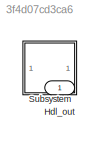
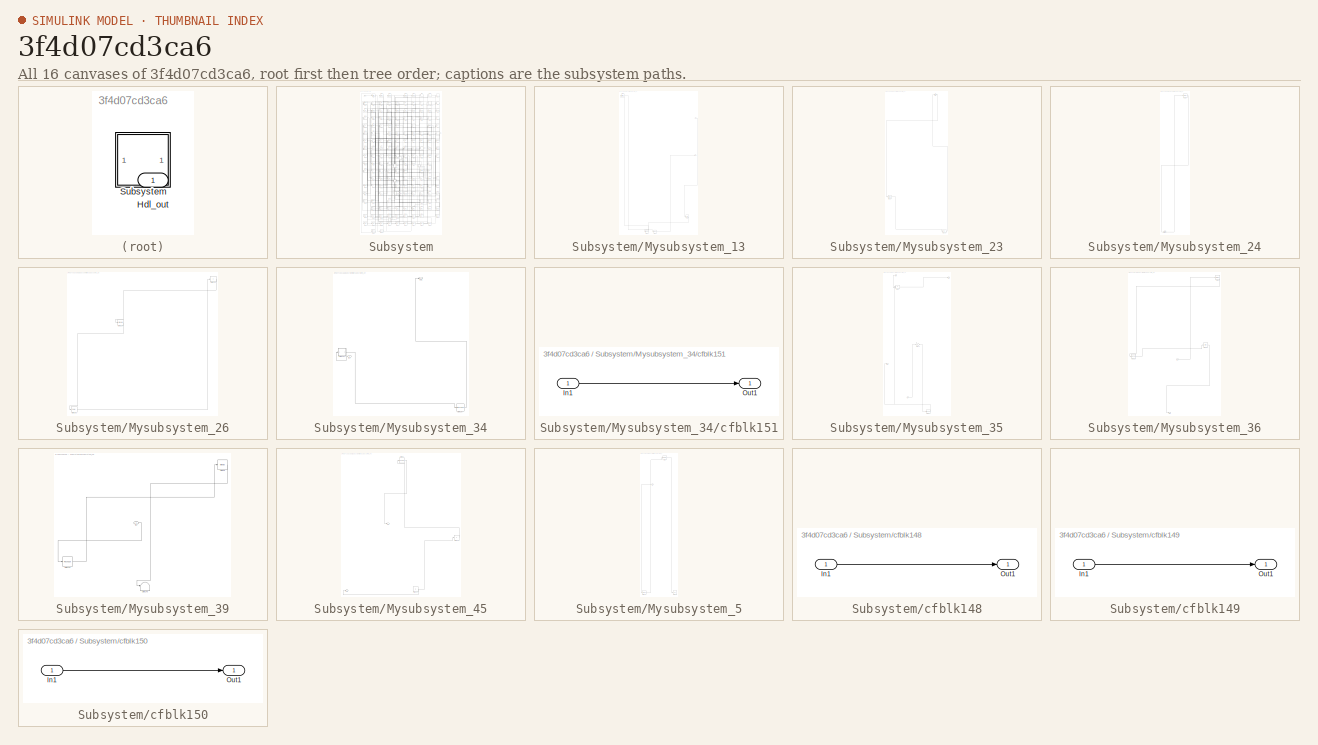
[diagram: thumbnail index - all 16 canvases of the model, root first then tree order]
MODEL slx_3f4d07cd3ca6
KIND model
CONFIG AbsTol = auto
CONFIG EnableMultiTasking = off
CONFIG FixedStep = auto
CONFIG MaxStep = auto
CONFIG MinStep = auto
CONFIG RelTol = 1e-3
CONFIG SampleTimeConstraint = Unconstrained
CONFIG SolverName = VariableStepAuto
CONFIG StartTime = 0.0
CONFIG StopTime = 10.0
BLOCK [Outport] Hdl_out
  OutDataTypeStr = uint8
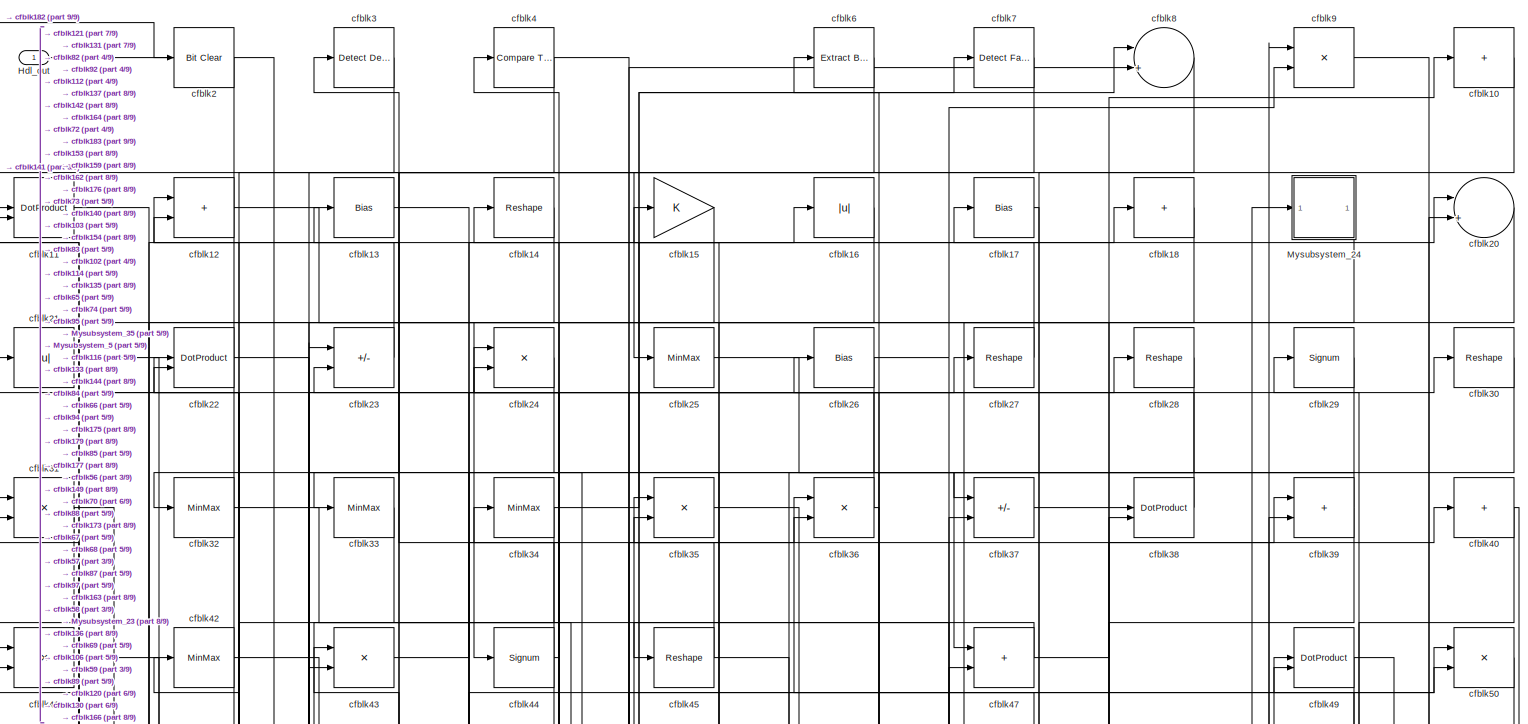
[diagram: Subsystem - part 1/9, full width, top band]
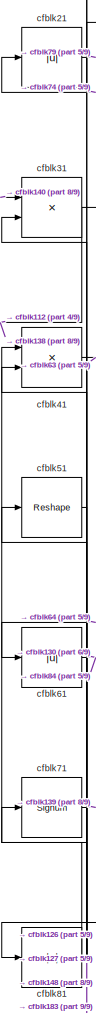
[diagram: Subsystem - part 2/9, top left region]
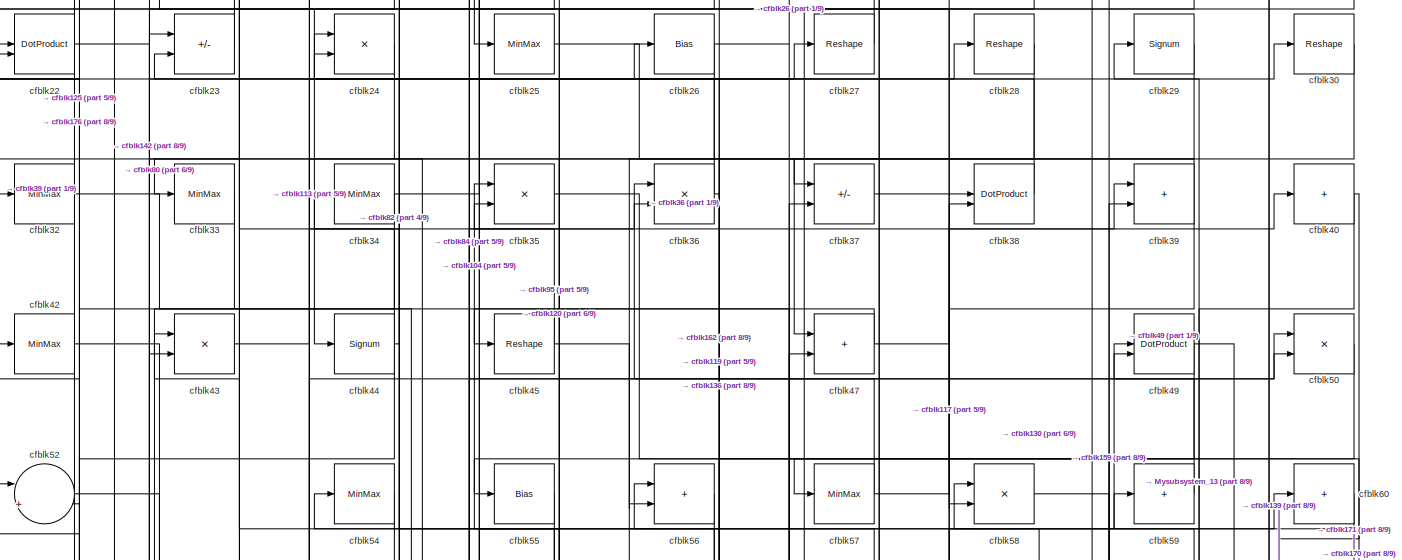
[diagram: Subsystem - part 3/9, full width, top band]
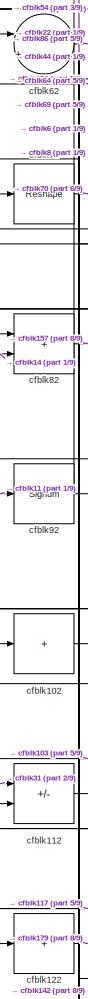
[diagram: Subsystem - part 4/9, middle left region]
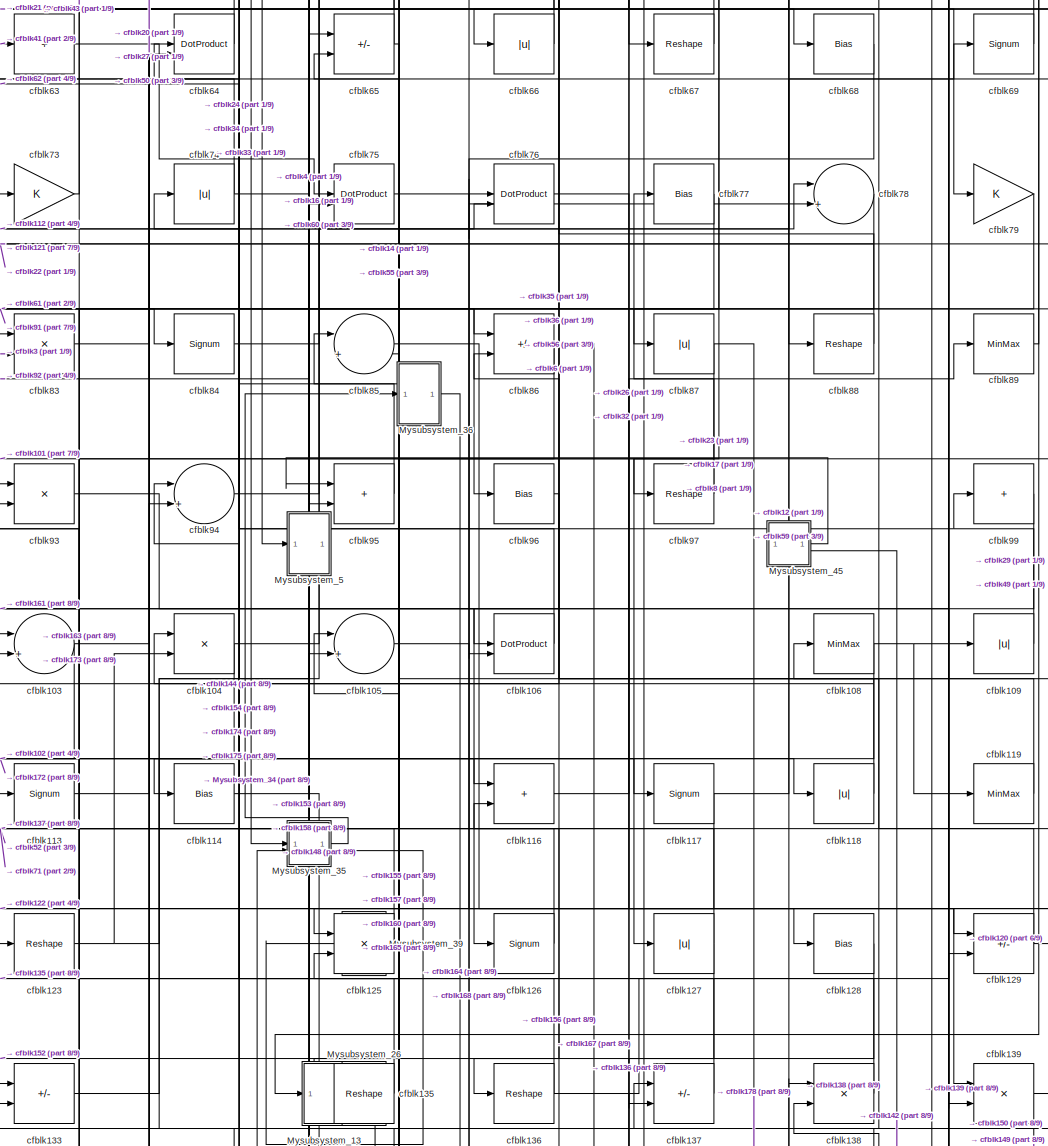
[diagram: Subsystem - part 5/9, central region]
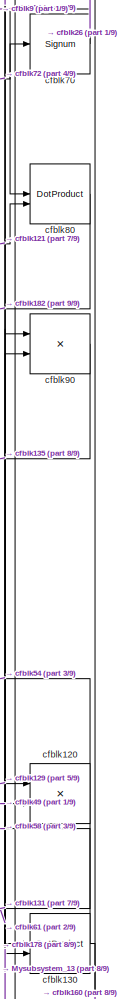
[diagram: Subsystem - part 6/9, middle right region]
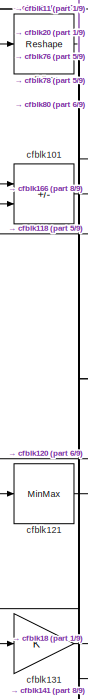
[diagram: Subsystem - part 7/9, middle left region]
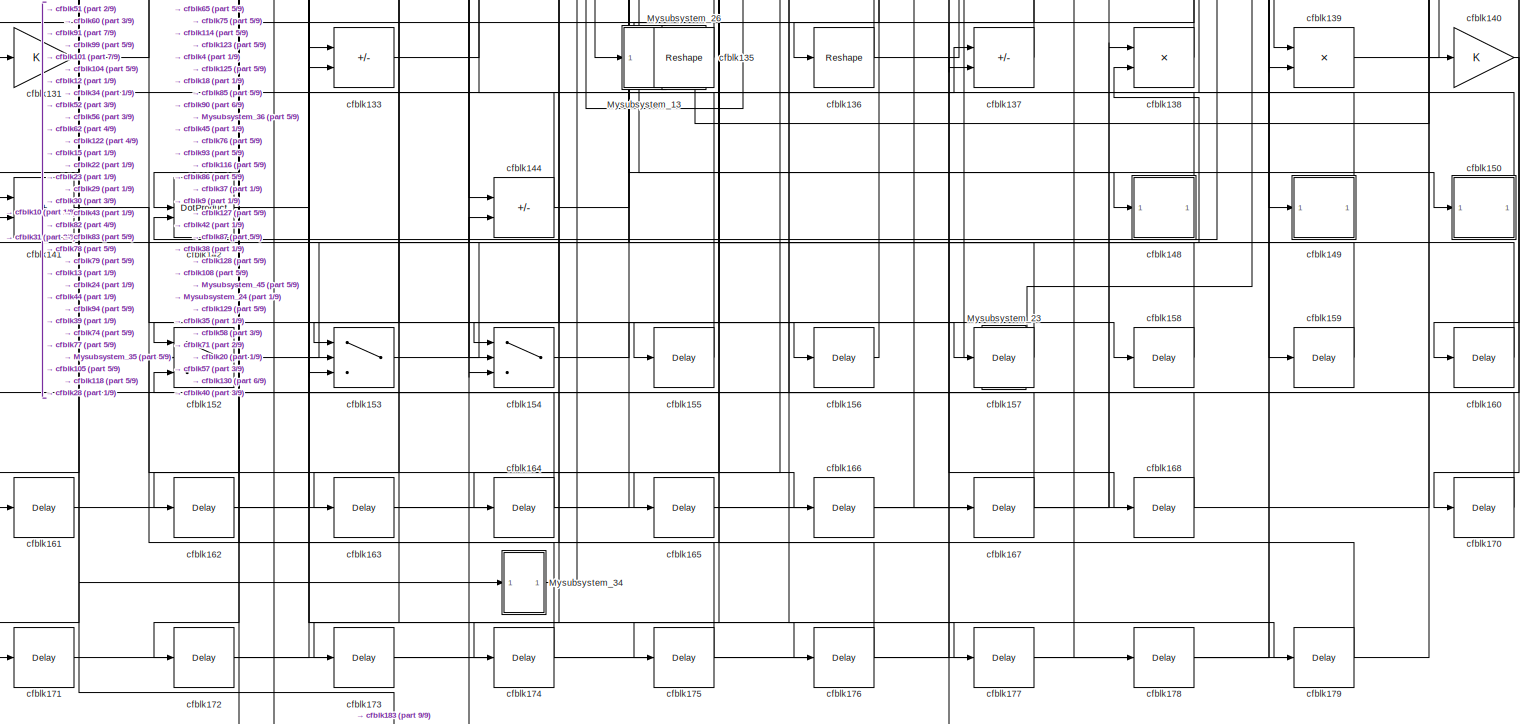
[diagram: Subsystem - part 8/9, full width, bottom band]
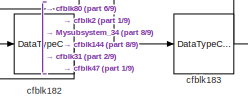
[diagram: Subsystem - part 9/9, bottom left region]
BLOCK [SubSystem] Subsystem
BLOCK [Outport] Subsystem/Hdl_out
  OutDataTypeStr = uint8
BLOCK [SubSystem] Subsystem/Mysubsystem_13
  RTWFcnName = Mysubsystem_13
  RTWFcnNameOpts = User specified
  RTWFileNameOpts = Use function name
  RTWSystemCode = Reusable function
  TreatAsAtomicUnit = on
BLOCK [Inport] Subsystem/Mysubsystem_13/In1
BLOCK [Outport] Subsystem/Mysubsystem_13/Out1
BLOCK [Reference] Subsystem/Mysubsystem_13/cfblk1  REF=simulink/Logic and Bit
Operations/Bitwise
Operator
  LibrarySourceBlock = hdlsllib/Logic and Bit\nOperations/Bitwise\nOperator
  SourceBlock = simulink/Logic and Bit\nOperations/Bitwise\nOperator
  SourceType = Bitwise Operator
BLOCK [Delay] Subsystem/Mysubsystem_13/cfblk169
  InputPortMap = u0
  SampleTime = 1
BLOCK [DataTypeConversion] Subsystem/Mysubsystem_13/cfblk184
  OutDataTypeStr = boolean
  RndMeth = Floor
  SaturateOnIntegerOverflow = off
BLOCK [DataTypeConversion] Subsystem/Mysubsystem_13/cfblk185
  OutDataTypeStr = uint8
  RndMeth = Floor
  SaturateOnIntegerOverflow = off
BLOCK [SubSystem] Subsystem/Mysubsystem_23
  RTWFcnName = Mysubsystem_23
  RTWFcnNameOpts = User specified
  RTWFileNameOpts = Use function name
  RTWSystemCode = Reusable function
  TreatAsAtomicUnit = on
BLOCK [Inport] Subsystem/Mysubsystem_23/In1
BLOCK [Outport] Subsystem/Mysubsystem_23/Out1
BLOCK [MinMax] Subsystem/Mysubsystem_23/cfblk134
BLOCK [Delay] Subsystem/Mysubsystem_23/cfblk180
  InputPortMap = u0
  SampleTime = 1
BLOCK [SubSystem] Subsystem/Mysubsystem_24
  RTWFcnName = Mysubsystem_24
  RTWFcnNameOpts = User specified
  RTWFileNameOpts = Use function name
  RTWSystemCode = Reusable function
  TreatAsAtomicUnit = on
BLOCK [Inport] Subsystem/Mysubsystem_24/In1
BLOCK [Outport] Subsystem/Mysubsystem_24/Out1
BLOCK [MinMax] Subsystem/Mysubsystem_24/cfblk19
BLOCK [SubSystem] Subsystem/Mysubsystem_26
  RTWFcnName = Mysubsystem_26
  RTWFcnNameOpts = User specified
  RTWFileNameOpts = Use function name
  RTWSystemCode = Reusable function
  TreatAsAtomicUnit = on
BLOCK [Sum] Subsystem/Mysubsystem_26/cfblk100
  IconShape = rectangular
  Inputs = +
BLOCK [Signum] Subsystem/Mysubsystem_26/cfblk124
BLOCK [Delay] Subsystem/Mysubsystem_26/cfblk181
  InputPortMap = u0
  SampleTime = 1
BLOCK [SubSystem] Subsystem/Mysubsystem_34
  RTWFcnName = Mysubsystem_34
  RTWFcnNameOpts = User specified
  RTWFileNameOpts = Use function name
  RTWSystemCode = Reusable function
  TreatAsAtomicUnit = on
BLOCK [Inport] Subsystem/Mysubsystem_34/In1
BLOCK [Outport] Subsystem/Mysubsystem_34/Out1
BLOCK [SubSystem] Subsystem/Mysubsystem_34/cfblk151
  LibrarySourceBlock = hdlsllib/Ports &\nSubsystems/Subsystem
BLOCK [Inport] Subsystem/Mysubsystem_34/cfblk151/In1
BLOCK [Outport] Subsystem/Mysubsystem_34/cfblk151/Out1
BLOCK [DataTypeConversion] Subsystem/Mysubsystem_34/cfblk187
  OutDataTypeStr = uint8
  RndMeth = Floor
  SaturateOnIntegerOverflow = off
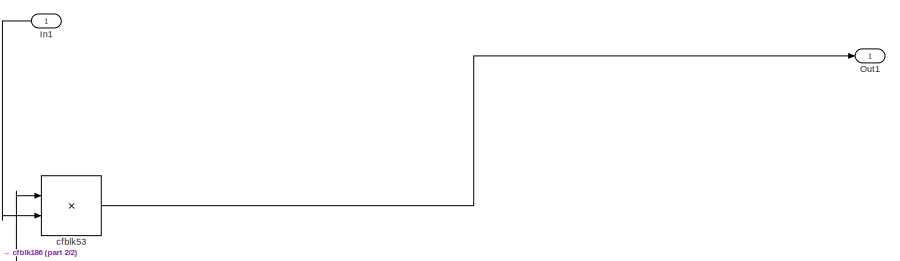
[diagram: Subsystem/Mysubsystem_35 - part 1/2, full width, top band]
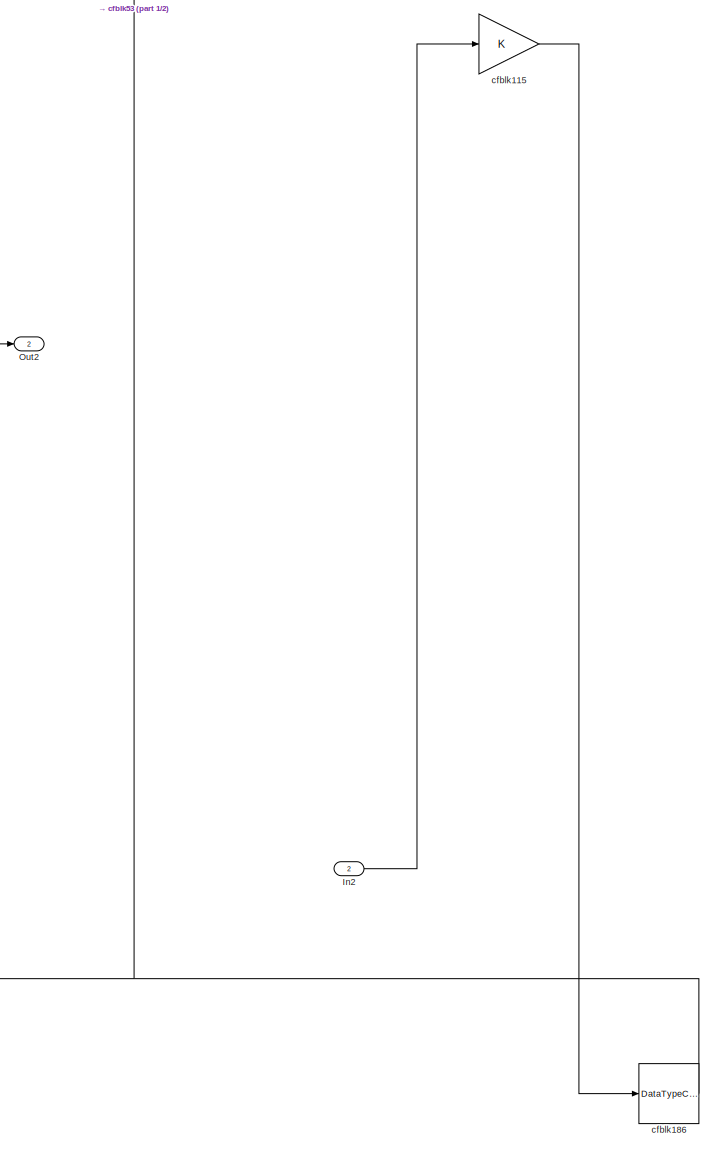
[diagram: Subsystem/Mysubsystem_35 - part 2/2, bottom center region]
BLOCK [SubSystem] Subsystem/Mysubsystem_35
  RTWFcnName = Mysubsystem_35
  RTWFcnNameOpts = User specified
  RTWFileNameOpts = Use function name
  RTWSystemCode = Reusable function
  TreatAsAtomicUnit = on
BLOCK [Inport] Subsystem/Mysubsystem_35/In1
BLOCK [Inport] Subsystem/Mysubsystem_35/In2
  Port = 2
BLOCK [Outport] Subsystem/Mysubsystem_35/Out1
BLOCK [Outport] Subsystem/Mysubsystem_35/Out2
  Port = 2
BLOCK [Gain] Subsystem/Mysubsystem_35/cfblk115
BLOCK [DataTypeConversion] Subsystem/Mysubsystem_35/cfblk186
  RndMeth = Floor
  SaturateOnIntegerOverflow = off
BLOCK [Product] Subsystem/Mysubsystem_35/cfblk53
  Inputs = */
  RndMeth = Zero
  SaturateOnIntegerOverflow = on
BLOCK [SubSystem] Subsystem/Mysubsystem_36
  RTWFcnName = Mysubsystem_36
  RTWFcnNameOpts = User specified
  RTWFileNameOpts = Use function name
  RTWSystemCode = Reusable function
  TreatAsAtomicUnit = on
BLOCK [Inport] Subsystem/Mysubsystem_36/In1
BLOCK [Outport] Subsystem/Mysubsystem_36/Out1
BLOCK [Bias] Subsystem/Mysubsystem_36/cfblk107
  Bias = 0.0
  SaturateOnIntegerOverflow = off
BLOCK [Reshape] Subsystem/Mysubsystem_36/cfblk111
BLOCK [MinMax] Subsystem/Mysubsystem_36/cfblk48
BLOCK [SubSystem] Subsystem/Mysubsystem_39
  RTWFcnName = Mysubsystem_39
  RTWFcnNameOpts = User specified
  RTWFileNameOpts = Use function name
  RTWSystemCode = Reusable function
  TreatAsAtomicUnit = on
BLOCK [Inport] Subsystem/Mysubsystem_39/In1
BLOCK [Reshape] Subsystem/Mysubsystem_39/cfblk132
BLOCK [Terminator] Subsystem/Mysubsystem_39/cfblk145
BLOCK [MinMax] Subsystem/Mysubsystem_39/cfblk98
BLOCK [SubSystem] Subsystem/Mysubsystem_45
  RTWFcnName = Mysubsystem_45
  RTWFcnNameOpts = User specified
  RTWFileNameOpts = Use function name
  RTWSystemCode = Reusable function
  TreatAsAtomicUnit = on
BLOCK [Outport] Subsystem/Mysubsystem_45/Out1
BLOCK [Outport] Subsystem/Mysubsystem_45/Out2
  Port = 2
BLOCK [Sum] Subsystem/Mysubsystem_45/cfblk110
  IconShape = rectangular
  Inputs = +
BLOCK [Constant] Subsystem/Mysubsystem_45/cfblk147
  SampleTime = -1
BLOCK [Reshape] Subsystem/Mysubsystem_45/cfblk46
BLOCK [SubSystem] Subsystem/Mysubsystem_5
  RTWFcnName = Mysubsystem_5
  RTWFcnNameOpts = User specified
  RTWFileNameOpts = Use function name
  RTWSystemCode = Reusable function
  TreatAsAtomicUnit = on
BLOCK [Inport] Subsystem/Mysubsystem_5/In1
BLOCK [Signum] Subsystem/Mysubsystem_5/cfblk143
BLOCK [Display] Subsystem/Mysubsystem_5/cfblk146
  Decimation = 1
BLOCK [Reference] Subsystem/Mysubsystem_5/cfblk5  REF=hdlsllib/Logic and Bit
Operations/Compare
To Zero
  SourceBlock = hdlsllib/Logic and Bit\nOperations/Compare\nTo Zero
  SourceType = Compare To Zero
BLOCK [Sum] Subsystem/cfblk10
  IconShape = rectangular
  Inputs = +
  OutDataTypeStr = uint8
BLOCK [Sum] Subsystem/cfblk101
  IconShape = rectangular
  Inputs = +-
  OutDataTypeStr = uint8
BLOCK [Sum] Subsystem/cfblk102
  IconShape = rectangular
  Inputs = +
  OutDataTypeStr = uint8
BLOCK [Sum] Subsystem/cfblk103
  Inputs = |++
  OutDataTypeStr = uint8
BLOCK [Product] Subsystem/cfblk104
  Inputs = */
  OutDataTypeStr = uint8
  RndMeth = Zero
  SaturateOnIntegerOverflow = on
BLOCK [Sum] Subsystem/cfblk105
  Inputs = |++
  OutDataTypeStr = uint8
BLOCK [DotProduct] Subsystem/cfblk106
  OutDataTypeStr = uint8
BLOCK [MinMax] Subsystem/cfblk108
  OutDataTypeStr = uint8
BLOCK [Abs] Subsystem/cfblk109
  OutDataTypeStr = uint8
  SaturateOnIntegerOverflow = off
BLOCK [DotProduct] Subsystem/cfblk11
  OutDataTypeStr = uint8
BLOCK [Sum] Subsystem/cfblk112
  IconShape = rectangular
  Inputs = +-
  OutDataTypeStr = uint8
BLOCK [Signum] Subsystem/cfblk113
BLOCK [Bias] Subsystem/cfblk114
  Bias = 0.0
  SaturateOnIntegerOverflow = off
BLOCK [Sum] Subsystem/cfblk116
  IconShape = rectangular
  OutDataTypeStr = uint8
BLOCK [Signum] Subsystem/cfblk117
BLOCK [Abs] Subsystem/cfblk118
  OutDataTypeStr = uint8
  SaturateOnIntegerOverflow = off
BLOCK [MinMax] Subsystem/cfblk119
  OutDataTypeStr = uint8
BLOCK [Sum] Subsystem/cfblk12
  IconShape = rectangular
  OutDataTypeStr = uint8
BLOCK [Product] Subsystem/cfblk120
  Inputs = */
  OutDataTypeStr = uint8
  RndMeth = Zero
  SaturateOnIntegerOverflow = on
BLOCK [MinMax] Subsystem/cfblk121
  OutDataTypeStr = uint8
BLOCK [Sum] Subsystem/cfblk122
  IconShape = rectangular
  Inputs = +
  OutDataTypeStr = uint8
BLOCK [Reshape] Subsystem/cfblk123
BLOCK [Product] Subsystem/cfblk125
  Inputs = */
  OutDataTypeStr = uint8
  RndMeth = Zero
  SaturateOnIntegerOverflow = on
BLOCK [Signum] Subsystem/cfblk126
BLOCK [Abs] Subsystem/cfblk127
  OutDataTypeStr = uint8
  SaturateOnIntegerOverflow = off
BLOCK [Bias] Subsystem/cfblk128
  Bias = 0.0
  SaturateOnIntegerOverflow = off
BLOCK [Sum] Subsystem/cfblk129
  IconShape = rectangular
  Inputs = +-
  OutDataTypeStr = uint8
BLOCK [Bias] Subsystem/cfblk13
  Bias = 0.0
  SaturateOnIntegerOverflow = off
BLOCK [DotProduct] Subsystem/cfblk130
  OutDataTypeStr = uint8
BLOCK [Gain] Subsystem/cfblk131
  OutDataTypeStr = uint8
BLOCK [Sum] Subsystem/cfblk133
  IconShape = rectangular
  Inputs = +-
  OutDataTypeStr = uint8
BLOCK [Reshape] Subsystem/cfblk135
BLOCK [Reshape] Subsystem/cfblk136
BLOCK [Sum] Subsystem/cfblk137
  IconShape = rectangular
  Inputs = +-
  OutDataTypeStr = uint8
BLOCK [Product] Subsystem/cfblk138
  Inputs = */
  OutDataTypeStr = uint8
  RndMeth = Zero
  SaturateOnIntegerOverflow = on
BLOCK [Product] Subsystem/cfblk139
  Inputs = */
  OutDataTypeStr = uint8
  RndMeth = Zero
  SaturateOnIntegerOverflow = on
BLOCK [Reshape] Subsystem/cfblk14
BLOCK [Gain] Subsystem/cfblk140
  OutDataTypeStr = uint8
BLOCK [Sum] Subsystem/cfblk141
  IconShape = rectangular
  OutDataTypeStr = uint8
BLOCK [DotProduct] Subsystem/cfblk142
  OutDataTypeStr = uint8
BLOCK [Sum] Subsystem/cfblk144
  IconShape = rectangular
  Inputs = +-
  OutDataTypeStr = uint8
BLOCK [SubSystem] Subsystem/cfblk148
  LibrarySourceBlock = hdlsllib/Ports &\nSubsystems/Subsystem
BLOCK [Inport] Subsystem/cfblk148/In1
BLOCK [Outport] Subsystem/cfblk148/Out1
BLOCK [SubSystem] Subsystem/cfblk149
  LibrarySourceBlock = hdlsllib/Ports &\nSubsystems/Subsystem
BLOCK [Inport] Subsystem/cfblk149/In1
BLOCK [Outport] Subsystem/cfblk149/Out1
BLOCK [Gain] Subsystem/cfblk15
  OutDataTypeStr = uint8
BLOCK [SubSystem] Subsystem/cfblk150
  LibrarySourceBlock = hdlsllib/Ports &\nSubsystems/Subsystem
BLOCK [Inport] Subsystem/cfblk150/In1
BLOCK [Outport] Subsystem/cfblk150/Out1
BLOCK [Switch] Subsystem/cfblk152
  InputSameDT = off
  OutDataTypeStr = uint8
  SaturateOnIntegerOverflow = off
BLOCK [Switch] Subsystem/cfblk153
  InputSameDT = off
  OutDataTypeStr = uint8
  SaturateOnIntegerOverflow = off
BLOCK [Switch] Subsystem/cfblk154
  InputSameDT = off
  OutDataTypeStr = uint8
  SaturateOnIntegerOverflow = off
BLOCK [Delay] Subsystem/cfblk155
  InputPortMap = u0
  SampleTime = 1
BLOCK [Delay] Subsystem/cfblk156
  InputPortMap = u0
  SampleTime = 1
BLOCK [Delay] Subsystem/cfblk157
  InputPortMap = u0
  SampleTime = 1
BLOCK [Delay] Subsystem/cfblk158
  InputPortMap = u0
  SampleTime = 1
BLOCK [Delay] Subsystem/cfblk159
  InputPortMap = u0
  SampleTime = 1
BLOCK [Abs] Subsystem/cfblk16
  OutDataTypeStr = uint8
  SaturateOnIntegerOverflow = off
BLOCK [Delay] Subsystem/cfblk160
  InputPortMap = u0
  SampleTime = 1
BLOCK [Delay] Subsystem/cfblk161
  InputPortMap = u0
  SampleTime = 1
BLOCK [Delay] Subsystem/cfblk162
  InputPortMap = u0
  SampleTime = 1
BLOCK [Delay] Subsystem/cfblk163
  InputPortMap = u0
  SampleTime = 1
BLOCK [Delay] Subsystem/cfblk164
  InputPortMap = u0
  SampleTime = 1
BLOCK [Delay] Subsystem/cfblk165
  InputPortMap = u0
  SampleTime = 1
BLOCK [Delay] Subsystem/cfblk166
  InputPortMap = u0
  SampleTime = 1
BLOCK [Delay] Subsystem/cfblk167
  InputPortMap = u0
  SampleTime = 1
BLOCK [Delay] Subsystem/cfblk168
  InputPortMap = u0
  SampleTime = 1
BLOCK [Bias] Subsystem/cfblk17
  Bias = 0.0
  SaturateOnIntegerOverflow = off
BLOCK [Delay] Subsystem/cfblk170
  InputPortMap = u0
  SampleTime = 1
BLOCK [Delay] Subsystem/cfblk171
  InputPortMap = u0
  SampleTime = 1
BLOCK [Delay] Subsystem/cfblk172
  InputPortMap = u0
  SampleTime = 1
BLOCK [Delay] Subsystem/cfblk173
  InputPortMap = u0
  SampleTime = 1
BLOCK [Delay] Subsystem/cfblk174
  InputPortMap = u0
  SampleTime = 1
BLOCK [Delay] Subsystem/cfblk175
  InputPortMap = u0
  SampleTime = 1
BLOCK [Delay] Subsystem/cfblk176
  InputPortMap = u0
  SampleTime = 1
BLOCK [Delay] Subsystem/cfblk177
  InputPortMap = u0
  SampleTime = 1
BLOCK [Delay] Subsystem/cfblk178
  InputPortMap = u0
  SampleTime = 1
BLOCK [Delay] Subsystem/cfblk179
  InputPortMap = u0
  SampleTime = 1
BLOCK [Sum] Subsystem/cfblk18
  IconShape = rectangular
  Inputs = +
  OutDataTypeStr = uint8
BLOCK [DataTypeConversion] Subsystem/cfblk182
  OutDataTypeStr = uint8
  RndMeth = Floor
  SaturateOnIntegerOverflow = off
BLOCK [DataTypeConversion] Subsystem/cfblk183
  OutDataTypeStr = uint8
  RndMeth = Floor
  SaturateOnIntegerOverflow = off
BLOCK [Reference] Subsystem/cfblk2  REF=simulink/Logic and Bit
Operations/Bit Clear
  LibrarySourceBlock = hdlsllib/Logic and Bit\nOperations/Bit Clear
  SourceBlock = simulink/Logic and Bit\nOperations/Bit Clear
  SourceType = Bit Clear
BLOCK [Sum] Subsystem/cfblk20
  Inputs = |++
  OutDataTypeStr = uint8
BLOCK [Abs] Subsystem/cfblk21
  OutDataTypeStr = uint8
  SaturateOnIntegerOverflow = off
BLOCK [DotProduct] Subsystem/cfblk22
  OutDataTypeStr = uint8
BLOCK [Sum] Subsystem/cfblk23
  IconShape = rectangular
  Inputs = +-
  OutDataTypeStr = uint8
BLOCK [Product] Subsystem/cfblk24
  Inputs = */
  OutDataTypeStr = uint8
  RndMeth = Zero
  SaturateOnIntegerOverflow = on
BLOCK [MinMax] Subsystem/cfblk25
  OutDataTypeStr = uint8
BLOCK [Bias] Subsystem/cfblk26
  Bias = 0.0
  SaturateOnIntegerOverflow = off
BLOCK [Reshape] Subsystem/cfblk27
BLOCK [Reshape] Subsystem/cfblk28
BLOCK [Signum] Subsystem/cfblk29
BLOCK [Reference] Subsystem/cfblk3  REF=simulink/Logic and Bit
Operations/Detect
Decrease
  LibrarySourceBlock = hdlsllib/Logic and Bit\nOperations/Detect\nDecrease
  SourceBlock = simulink/Logic and Bit\nOperations/Detect\nDecrease
  SourceType = Detect Decrease
BLOCK [Reshape] Subsystem/cfblk30
BLOCK [Product] Subsystem/cfblk31
  Inputs = */
  OutDataTypeStr = uint8
  RndMeth = Zero
  SaturateOnIntegerOverflow = on
BLOCK [MinMax] Subsystem/cfblk32
  OutDataTypeStr = uint8
BLOCK [MinMax] Subsystem/cfblk33
  OutDataTypeStr = uint8
BLOCK [MinMax] Subsystem/cfblk34
  OutDataTypeStr = uint8
BLOCK [Product] Subsystem/cfblk35
  Inputs = */
  OutDataTypeStr = uint8
  RndMeth = Zero
  SaturateOnIntegerOverflow = on
BLOCK [Product] Subsystem/cfblk36
  Inputs = */
  OutDataTypeStr = uint8
  RndMeth = Zero
  SaturateOnIntegerOverflow = on
BLOCK [Sum] Subsystem/cfblk37
  IconShape = rectangular
  Inputs = +-
  OutDataTypeStr = uint8
BLOCK [DotProduct] Subsystem/cfblk38
  OutDataTypeStr = uint8
BLOCK [Sum] Subsystem/cfblk39
  IconShape = rectangular
  OutDataTypeStr = uint8
BLOCK [Reference] Subsystem/cfblk4  REF=hdlsllib/Logic and Bit
Operations/Compare
To Constant
  SourceBlock = hdlsllib/Logic and Bit\nOperations/Compare\nTo Constant
  SourceType = Compare To Constant
BLOCK [Sum] Subsystem/cfblk40
  IconShape = rectangular
  Inputs = +
  OutDataTypeStr = uint8
BLOCK [Product] Subsystem/cfblk41
  Inputs = */
  OutDataTypeStr = uint8
  RndMeth = Zero
  SaturateOnIntegerOverflow = on
BLOCK [MinMax] Subsystem/cfblk42
  OutDataTypeStr = uint8
BLOCK [Product] Subsystem/cfblk43
  Inputs = */
  OutDataTypeStr = uint8
  RndMeth = Zero
  SaturateOnIntegerOverflow = on
BLOCK [Signum] Subsystem/cfblk44
BLOCK [Reshape] Subsystem/cfblk45
BLOCK [Sum] Subsystem/cfblk47
  IconShape = rectangular
  OutDataTypeStr = uint8
BLOCK [DotProduct] Subsystem/cfblk49
  OutDataTypeStr = uint8
BLOCK [Product] Subsystem/cfblk50
  Inputs = */
  OutDataTypeStr = uint8
  RndMeth = Zero
  SaturateOnIntegerOverflow = on
BLOCK [Reshape] Subsystem/cfblk51
BLOCK [Sum] Subsystem/cfblk52
  Inputs = |++
  OutDataTypeStr = uint8
BLOCK [MinMax] Subsystem/cfblk54
  OutDataTypeStr = uint8
BLOCK [Bias] Subsystem/cfblk55
  Bias = 0.0
  SaturateOnIntegerOverflow = off
BLOCK [Sum] Subsystem/cfblk56
  IconShape = rectangular
  OutDataTypeStr = uint8
BLOCK [MinMax] Subsystem/cfblk57
  OutDataTypeStr = uint8
BLOCK [Product] Subsystem/cfblk58
  Inputs = */
  OutDataTypeStr = uint8
  RndMeth = Zero
  SaturateOnIntegerOverflow = on
BLOCK [Sum] Subsystem/cfblk59
  IconShape = rectangular
  Inputs = +
  OutDataTypeStr = uint8
BLOCK [Reference] Subsystem/cfblk6  REF=simulink/Logic and Bit
Operations/Extract Bits
  LibrarySourceBlock = hdlsllib/Logic and Bit\nOperations/Extract Bits
  SourceBlock = simulink/Logic and Bit\nOperations/Extract Bits
  SourceType = Extract Bits
BLOCK [Sum] Subsystem/cfblk60
  IconShape = rectangular
  Inputs = +
  OutDataTypeStr = uint8
BLOCK [Abs] Subsystem/cfblk61
  OutDataTypeStr = uint8
  SaturateOnIntegerOverflow = off
BLOCK [Sum] Subsystem/cfblk62
  Inputs = |++
  OutDataTypeStr = uint8
BLOCK [Sum] Subsystem/cfblk63
  IconShape = rectangular
  Inputs = +
  OutDataTypeStr = uint8
BLOCK [DotProduct] Subsystem/cfblk64
  OutDataTypeStr = uint8
BLOCK [Sum] Subsystem/cfblk65
  IconShape = rectangular
  Inputs = +-
  OutDataTypeStr = uint8
BLOCK [Abs] Subsystem/cfblk66
  OutDataTypeStr = uint8
  SaturateOnIntegerOverflow = off
BLOCK [Reshape] Subsystem/cfblk67
BLOCK [Bias] Subsystem/cfblk68
  Bias = 0.0
  SaturateOnIntegerOverflow = off
BLOCK [Signum] Subsystem/cfblk69
BLOCK [Reference] Subsystem/cfblk7  REF=hdlsllib/Logic and Bit
Operations/Detect Fall
Negative
  SourceBlock = hdlsllib/Logic and Bit\nOperations/Detect Fall\nNegative
  SourceType = Detect Fall Negative
BLOCK [Signum] Subsystem/cfblk70
BLOCK [Signum] Subsystem/cfblk71
BLOCK [Reshape] Subsystem/cfblk72
BLOCK [Gain] Subsystem/cfblk73
  OutDataTypeStr = uint8
BLOCK [Abs] Subsystem/cfblk74
  OutDataTypeStr = uint8
  SaturateOnIntegerOverflow = off
BLOCK [DotProduct] Subsystem/cfblk75
  OutDataTypeStr = uint8
BLOCK [DotProduct] Subsystem/cfblk76
  OutDataTypeStr = uint8
BLOCK [Bias] Subsystem/cfblk77
  Bias = 0.0
  SaturateOnIntegerOverflow = off
BLOCK [Sum] Subsystem/cfblk78
  Inputs = |++
  OutDataTypeStr = uint8
BLOCK [Gain] Subsystem/cfblk79
  OutDataTypeStr = uint8
BLOCK [Sum] Subsystem/cfblk8
  Inputs = |++
  OutDataTypeStr = uint8
BLOCK [DotProduct] Subsystem/cfblk80
  OutDataTypeStr = uint8
BLOCK [Abs] Subsystem/cfblk81
  OutDataTypeStr = uint8
  SaturateOnIntegerOverflow = off
BLOCK [Sum] Subsystem/cfblk82
  IconShape = rectangular
  OutDataTypeStr = uint8
BLOCK [Product] Subsystem/cfblk83
  Inputs = */
  OutDataTypeStr = uint8
  RndMeth = Zero
  SaturateOnIntegerOverflow = on
BLOCK [Signum] Subsystem/cfblk84
BLOCK [Sum] Subsystem/cfblk85
  Inputs = |++
  OutDataTypeStr = uint8
BLOCK [Sum] Subsystem/cfblk86
  IconShape = rectangular
  Inputs = +-
  OutDataTypeStr = uint8
BLOCK [Abs] Subsystem/cfblk87
  OutDataTypeStr = uint8
  SaturateOnIntegerOverflow = off
BLOCK [Reshape] Subsystem/cfblk88
BLOCK [MinMax] Subsystem/cfblk89
  OutDataTypeStr = uint8
BLOCK [Product] Subsystem/cfblk9
  Inputs = */
  OutDataTypeStr = uint8
  RndMeth = Zero
  SaturateOnIntegerOverflow = on
BLOCK [Product] Subsystem/cfblk90
  Inputs = */
  OutDataTypeStr = uint8
  RndMeth = Zero
  SaturateOnIntegerOverflow = on
BLOCK [Reshape] Subsystem/cfblk91
BLOCK [Signum] Subsystem/cfblk92
BLOCK [Product] Subsystem/cfblk93
  Inputs = */
  OutDataTypeStr = uint8
  RndMeth = Zero
  SaturateOnIntegerOverflow = on
BLOCK [Sum] Subsystem/cfblk94
  Inputs = |++
  OutDataTypeStr = uint8
BLOCK [Sum] Subsystem/cfblk95
  IconShape = rectangular
  OutDataTypeStr = uint8
BLOCK [Bias] Subsystem/cfblk96
  Bias = 0.0
  SaturateOnIntegerOverflow = off
BLOCK [Reshape] Subsystem/cfblk97
BLOCK [Sum] Subsystem/cfblk99
  IconShape = rectangular
  Inputs = +
  OutDataTypeStr = uint8
LINE Subsystem/Mysubsystem_13/In1:1 -> Subsystem/Mysubsystem_13/cfblk169:1
LINE Subsystem/Mysubsystem_13/cfblk169:1 -> Subsystem/Mysubsystem_13/cfblk184:1
LINE Subsystem/Mysubsystem_13/cfblk184:1 -> Subsystem/Mysubsystem_13/cfblk1:1
LINE Subsystem/Mysubsystem_13/cfblk185:1 -> Subsystem/Mysubsystem_13/Out1:1
LINE Subsystem/Mysubsystem_13/cfblk1:1 -> Subsystem/Mysubsystem_13/cfblk185:1
LINE Subsystem/Mysubsystem_13:1 -> Subsystem/cfblk90:1
LINE Subsystem/Mysubsystem_23/In1:1 -> Subsystem/Mysubsystem_23/cfblk134:1
LINE Subsystem/Mysubsystem_23/cfblk134:1 -> Subsystem/Mysubsystem_23/cfblk180:1
LINE Subsystem/Mysubsystem_23/cfblk180:1 -> Subsystem/Mysubsystem_23/Out1:1
LINE Subsystem/Mysubsystem_23:1 -> Subsystem/Mysubsystem_24:1
LINE Subsystem/Mysubsystem_24/In1:1 -> Subsystem/Mysubsystem_24/cfblk19:1
LINE Subsystem/Mysubsystem_24/cfblk19:1 -> Subsystem/Mysubsystem_24/Out1:1
LINE Subsystem/Mysubsystem_24:1 -> Subsystem/Mysubsystem_23:1
LINE Subsystem/Mysubsystem_26/cfblk100:1 -> Subsystem/Mysubsystem_26/cfblk124:1
LINE Subsystem/Mysubsystem_26/cfblk124:1 -> Subsystem/Mysubsystem_26/cfblk181:1
LINE Subsystem/Mysubsystem_26/cfblk181:1 -> Subsystem/Mysubsystem_26/cfblk100:1
LINE Subsystem/Mysubsystem_34/In1:1 -> Subsystem/Mysubsystem_34/cfblk151:1
LINE Subsystem/Mysubsystem_34/cfblk151/In1:1 -> Subsystem/Mysubsystem_34/cfblk151/Out1:1
LINE Subsystem/Mysubsystem_34/cfblk151:1 -> Subsystem/Mysubsystem_34/cfblk187:1
LINE Subsystem/Mysubsystem_34/cfblk187:1 -> Subsystem/Mysubsystem_34/Out1:1
LINE Subsystem/Mysubsystem_34:1 -> Subsystem/Mysubsystem_35:2
LINE Subsystem/Mysubsystem_35/In1:1 -> Subsystem/Mysubsystem_35/cfblk53:2
LINE Subsystem/Mysubsystem_35/In2:1 -> Subsystem/Mysubsystem_35/cfblk115:1
LINE Subsystem/Mysubsystem_35/cfblk115:1 -> Subsystem/Mysubsystem_35/cfblk186:1
NET Subsystem/Mysubsystem_35/cfblk186:1 -> Subsystem/Mysubsystem_35/Out2:1, Subsystem/Mysubsystem_35/cfblk53:1
LINE Subsystem/Mysubsystem_35/cfblk53:1 -> Subsystem/Mysubsystem_35/Out1:1
LINE Subsystem/Mysubsystem_35:1 -> Subsystem/Mysubsystem_36:1
LINE Subsystem/Mysubsystem_35:2 -> Subsystem/Mysubsystem_39:1
LINE Subsystem/Mysubsystem_36/In1:1 -> Subsystem/Mysubsystem_36/cfblk48:1
LINE Subsystem/Mysubsystem_36/cfblk107:1 -> Subsystem/Mysubsystem_36/Out1:1
LINE Subsystem/Mysubsystem_36/cfblk111:1 -> Subsystem/Mysubsystem_36/cfblk107:1
LINE Subsystem/Mysubsystem_36/cfblk48:1 -> Subsystem/Mysubsystem_36/cfblk111:1
LINE Subsystem/Mysubsystem_36:1 -> Subsystem/cfblk164:1
LINE Subsystem/Mysubsystem_39/In1:1 -> Subsystem/Mysubsystem_39/cfblk132:1
LINE Subsystem/Mysubsystem_39/cfblk132:1 -> Subsystem/Mysubsystem_39/cfblk98:1
LINE Subsystem/Mysubsystem_39/cfblk98:1 -> Subsystem/Mysubsystem_39/cfblk145:1
LINE Subsystem/Mysubsystem_45/cfblk110:1 -> Subsystem/Mysubsystem_45/cfblk46:1
NET Subsystem/Mysubsystem_45/cfblk147:1 -> Subsystem/Mysubsystem_45/Out2:1, Subsystem/Mysubsystem_45/cfblk110:1
LINE Subsystem/Mysubsystem_45/cfblk46:1 -> Subsystem/Mysubsystem_45/Out1:1
LINE Subsystem/Mysubsystem_45:1 -> Subsystem/cfblk95:1
LINE Subsystem/Mysubsystem_45:2 -> Subsystem/cfblk142:2
LINE Subsystem/Mysubsystem_5/In1:1 -> Subsystem/Mysubsystem_5/cfblk143:1
LINE Subsystem/Mysubsystem_5/cfblk143:1 -> Subsystem/Mysubsystem_5/cfblk5:1
LINE Subsystem/Mysubsystem_5/cfblk5:1 -> Subsystem/Mysubsystem_5/cfblk146:1
LINE Subsystem/cfblk101:1 -> Subsystem/cfblk166:1
LINE Subsystem/cfblk102:1 -> Subsystem/cfblk117:1
NET Subsystem/cfblk103:1 -> Subsystem/cfblk112:2, Subsystem/cfblk27:1
NET Subsystem/cfblk104:1 -> Subsystem/cfblk172:1, Subsystem/cfblk60:1
LINE Subsystem/cfblk105:1 -> Subsystem/cfblk129:1
LINE Subsystem/cfblk106:1 -> Subsystem/cfblk62:1
NET Subsystem/cfblk108:1 -> Subsystem/cfblk109:1, Subsystem/cfblk119:1, Subsystem/cfblk163:1
NET Subsystem/cfblk109:1 -> Subsystem/cfblk64:1, Subsystem/cfblk99:1
LINE Subsystem/cfblk10:1 -> Subsystem/cfblk141:2
NET Subsystem/cfblk112:1 -> Subsystem/cfblk22:1, Subsystem/cfblk69:1
LINE Subsystem/cfblk113:1 -> Subsystem/cfblk50:1
LINE Subsystem/cfblk114:1 -> Subsystem/cfblk148:1
LINE Subsystem/cfblk116:1 -> Subsystem/cfblk89:1
NET Subsystem/cfblk117:1 -> Subsystem/cfblk122:1, Subsystem/cfblk59:1
NET Subsystem/cfblk118:1 -> Subsystem/cfblk101:1, Subsystem/cfblk86:2
LINE Subsystem/cfblk119:1 -> Subsystem/cfblk56:1
LINE Subsystem/cfblk11:1 -> Subsystem/cfblk92:1
NET Subsystem/cfblk120:1 -> Subsystem/cfblk131:1, Subsystem/cfblk54:1
NET Subsystem/cfblk121:1 -> Subsystem/cfblk11:2, Subsystem/cfblk76:2, Subsystem/cfblk80:2
NET Subsystem/cfblk122:1 -> Subsystem/cfblk103:2, Subsystem/cfblk179:1
NET Subsystem/cfblk123:1 -> Subsystem/cfblk104:2, Subsystem/cfblk78:1
LINE Subsystem/cfblk125:1 -> Subsystem/cfblk52:1
LINE Subsystem/cfblk126:1 -> Subsystem/cfblk71:1
NET Subsystem/cfblk127:1 -> Subsystem/cfblk137:2, Subsystem/cfblk41:2
NET Subsystem/cfblk128:1 -> Subsystem/cfblk152:1, Subsystem/cfblk155:1
NET Subsystem/cfblk129:1 -> Subsystem/cfblk120:1, Subsystem/cfblk65:2, Subsystem/cfblk93:1
LINE Subsystem/cfblk12:1 -> Subsystem/cfblk88:1
NET Subsystem/cfblk130:1 -> Subsystem/cfblk160:1, Subsystem/cfblk58:1
LINE Subsystem/cfblk131:1 -> Subsystem/cfblk18:1
LINE Subsystem/cfblk133:1 -> Subsystem/cfblk39:1
NET Subsystem/cfblk135:1 -> Subsystem/cfblk123:1, Subsystem/cfblk4:1
NET Subsystem/cfblk136:1 -> Subsystem/cfblk168:1, Subsystem/cfblk93:2, Subsystem/cfblk9:1
LINE Subsystem/cfblk137:1 -> Subsystem/cfblk42:1
LINE Subsystem/cfblk138:1 -> Subsystem/cfblk74:1
LINE Subsystem/cfblk139:1 -> Subsystem/cfblk57:1
LINE Subsystem/cfblk13:1 -> Subsystem/cfblk144:1
LINE Subsystem/cfblk140:1 -> Subsystem/cfblk31:1
LINE Subsystem/cfblk141:1 -> Subsystem/cfblk156:1
NET Subsystem/cfblk142:1 -> Subsystem/cfblk30:1, Subsystem/cfblk62:2
NET Subsystem/cfblk144:1 -> Subsystem/cfblk118:1, Subsystem/cfblk137:1, Subsystem/cfblk28:1
LINE Subsystem/cfblk148/In1:1 -> Subsystem/cfblk148/Out1:1
LINE Subsystem/cfblk148:1 -> Subsystem/cfblk51:1
LINE Subsystem/cfblk149/In1:1 -> Subsystem/cfblk149/Out1:1
LINE Subsystem/cfblk149:1 -> Subsystem/cfblk108:1
LINE Subsystem/cfblk14:1 -> Subsystem/cfblk82:2
LINE Subsystem/cfblk150/In1:1 -> Subsystem/cfblk150/Out1:1
LINE Subsystem/cfblk150:1 -> Subsystem/cfblk85:1
LINE Subsystem/cfblk152:1 -> Subsystem/cfblk94:2
LINE Subsystem/cfblk153:1 -> Subsystem/cfblk105:2
LINE Subsystem/cfblk154:1 -> Subsystem/cfblk158:1
LINE Subsystem/cfblk155:1 -> Subsystem/cfblk83:1
LINE Subsystem/cfblk156:1 -> Subsystem/cfblk116:2
LINE Subsystem/cfblk157:1 -> Subsystem/cfblk105:1
LINE Subsystem/cfblk158:1 -> Subsystem/cfblk65:1
LINE Subsystem/cfblk159:1 -> Subsystem/cfblk23:1
NET Subsystem/cfblk15:1 -> Subsystem/cfblk153:3, Subsystem/cfblk44:1
LINE Subsystem/cfblk160:1 -> Subsystem/cfblk125:2
LINE Subsystem/cfblk161:1 -> Subsystem/cfblk75:2
LINE Subsystem/cfblk162:1 -> Subsystem/cfblk43:2
LINE Subsystem/cfblk163:1 -> Subsystem/cfblk38:2
LINE Subsystem/cfblk164:1 -> Subsystem/cfblk12:2
LINE Subsystem/cfblk165:1 -> Subsystem/cfblk138:1
LINE Subsystem/cfblk166:1 -> Subsystem/cfblk20:2
LINE Subsystem/cfblk167:1 -> Subsystem/cfblk152:3
LINE Subsystem/cfblk168:1 -> Subsystem/cfblk76:1
LINE Subsystem/cfblk16:1 -> Subsystem/cfblk114:1
LINE Subsystem/cfblk170:1 -> Subsystem/cfblk153:2
LINE Subsystem/cfblk171:1 -> Subsystem/cfblk133:1
LINE Subsystem/cfblk172:1 -> Subsystem/cfblk129:2
LINE Subsystem/cfblk173:1 -> Subsystem/cfblk37:2
LINE Subsystem/cfblk174:1 -> Subsystem/cfblk152:2
LINE Subsystem/cfblk175:1 -> Subsystem/cfblk94:1
LINE Subsystem/cfblk176:1 -> Subsystem/cfblk52:2
LINE Subsystem/cfblk177:1 -> Subsystem/cfblk39:2
LINE Subsystem/cfblk178:1 -> Subsystem/cfblk90:2
LINE Subsystem/cfblk179:1 -> Subsystem/cfblk15:1
LINE Subsystem/cfblk17:1 -> Subsystem/cfblk87:1
LINE Subsystem/cfblk182:1 -> Subsystem/cfblk2:1
NET Subsystem/cfblk183:1 -> Subsystem/Mysubsystem_34:1, Subsystem/cfblk144:2, Subsystem/cfblk31:2, Subsystem/cfblk47:2
LINE Subsystem/cfblk18:1 -> Subsystem/cfblk175:1
LINE Subsystem/cfblk20:1 -> Subsystem/cfblk121:1
LINE Subsystem/cfblk21:1 -> Subsystem/cfblk79:1
LINE Subsystem/cfblk22:1 -> Subsystem/cfblk176:1
LINE Subsystem/cfblk23:1 -> Subsystem/cfblk12:1
NET Subsystem/cfblk24:1 -> Subsystem/Mysubsystem_5:1, Subsystem/cfblk154:2
LINE Subsystem/cfblk25:1 -> Subsystem/cfblk37:1
NET Subsystem/cfblk26:1 -> Subsystem/cfblk56:2, Subsystem/cfblk68:1, Subsystem/cfblk9:2
LINE Subsystem/cfblk27:1 -> Subsystem/cfblk17:1
LINE Subsystem/cfblk28:1 -> Subsystem/cfblk47:1
NET Subsystem/cfblk29:1 -> Subsystem/cfblk133:2, Subsystem/cfblk85:2
LINE Subsystem/cfblk2:1 -> Subsystem/cfblk183:1
LINE Subsystem/cfblk30:1 -> Subsystem/cfblk136:1
NET Subsystem/cfblk31:1 -> Subsystem/cfblk112:1, Subsystem/cfblk138:2
LINE Subsystem/cfblk32:1 -> Subsystem/cfblk67:1
NET Subsystem/cfblk33:1 -> Subsystem/Mysubsystem_35:1, Subsystem/cfblk73:1
NET Subsystem/cfblk34:1 -> Subsystem/cfblk142:1, Subsystem/cfblk7:1
LINE Subsystem/cfblk35:1 -> Subsystem/cfblk149:1
NET Subsystem/cfblk36:1 -> Subsystem/cfblk11:1, Subsystem/cfblk66:1
LINE Subsystem/cfblk37:1 -> Subsystem/cfblk38:1
LINE Subsystem/cfblk38:1 -> Subsystem/cfblk3:1
NET Subsystem/cfblk39:1 -> Subsystem/cfblk32:1, Subsystem/cfblk58:2
LINE Subsystem/cfblk3:1 -> Subsystem/cfblk83:2
NET Subsystem/cfblk40:1 -> Subsystem/Mysubsystem_13:1, Subsystem/cfblk170:1
LINE Subsystem/cfblk41:1 -> Subsystem/cfblk63:1
LINE Subsystem/cfblk42:1 -> Subsystem/cfblk140:1
LINE Subsystem/cfblk43:1 -> Subsystem/cfblk36:1
NET Subsystem/cfblk44:1 -> Subsystem/cfblk102:1, Subsystem/cfblk13:1, Subsystem/cfblk154:3, Subsystem/cfblk24:2
NET Subsystem/cfblk45:1 -> Subsystem/cfblk177:1, Subsystem/cfblk35:2
NET Subsystem/cfblk47:1 -> Subsystem/cfblk10:1, Subsystem/cfblk45:1
NET Subsystem/cfblk49:1 -> Subsystem/cfblk106:1, Subsystem/cfblk120:2
NET Subsystem/cfblk4:1 -> Subsystem/cfblk103:1, Subsystem/cfblk116:1
LINE Subsystem/cfblk50:1 -> Subsystem/cfblk55:1
LINE Subsystem/cfblk51:1 -> Subsystem/cfblk81:1
LINE Subsystem/cfblk52:1 -> Subsystem/cfblk80:1
LINE Subsystem/cfblk54:1 -> Subsystem/cfblk82:1
LINE Subsystem/cfblk55:1 -> Subsystem/cfblk95:2
LINE Subsystem/cfblk56:1 -> Subsystem/cfblk162:1
NET Subsystem/cfblk57:1 -> Subsystem/cfblk36:2, Subsystem/cfblk40:1
LINE Subsystem/cfblk58:1 -> Subsystem/cfblk159:1
LINE Subsystem/cfblk59:1 -> Subsystem/cfblk49:2
LINE Subsystem/cfblk60:1 -> Subsystem/cfblk171:1
NET Subsystem/cfblk61:1 -> Subsystem/cfblk130:2, Subsystem/cfblk84:1
LINE Subsystem/cfblk62:1 -> Subsystem/cfblk86:1
LINE Subsystem/cfblk63:1 -> Subsystem/cfblk75:1
LINE Subsystem/cfblk64:1 -> Subsystem/cfblk61:1
NET Subsystem/cfblk65:1 -> Subsystem/cfblk125:1, Subsystem/cfblk14:1
LINE Subsystem/cfblk66:1 -> Subsystem/cfblk35:1
LINE Subsystem/cfblk67:1 -> Subsystem/cfblk23:2
LINE Subsystem/cfblk68:1 -> Subsystem/cfblk106:2
LINE Subsystem/cfblk69:1 -> Subsystem/cfblk49:1
NET Subsystem/cfblk6:1 -> Subsystem/cfblk25:1, Subsystem/cfblk72:1
LINE Subsystem/cfblk70:1 -> Subsystem/cfblk26:1
LINE Subsystem/cfblk71:1 -> Subsystem/cfblk139:2
LINE Subsystem/cfblk72:1 -> Subsystem/cfblk70:1
LINE Subsystem/cfblk73:1 -> Subsystem/cfblk43:1
NET Subsystem/cfblk74:1 -> Subsystem/cfblk150:1, Subsystem/cfblk174:1, Subsystem/cfblk21:1, Subsystem/cfblk34:1
LINE Subsystem/cfblk75:1 -> Subsystem/cfblk78:2
LINE Subsystem/cfblk76:1 -> Subsystem/cfblk128:1
LINE Subsystem/cfblk77:1 -> Subsystem/cfblk154:1
NET Subsystem/cfblk78:1 -> Subsystem/cfblk153:1, Subsystem/cfblk91:1
NET Subsystem/cfblk79:1 -> Subsystem/cfblk173:1, Subsystem/cfblk96:1
LINE Subsystem/cfblk7:1 -> Subsystem/cfblk33:1
LINE Subsystem/cfblk80:1 -> Subsystem/cfblk182:1
LINE Subsystem/cfblk81:1 -> Subsystem/cfblk41:1
LINE Subsystem/cfblk82:1 -> Subsystem/cfblk157:1
LINE Subsystem/cfblk83:1 -> Subsystem/cfblk20:1
NET Subsystem/cfblk84:1 -> Subsystem/cfblk50:2, Subsystem/cfblk8:1
LINE Subsystem/cfblk85:1 -> Subsystem/cfblk139:1
NET Subsystem/cfblk86:1 -> Subsystem/cfblk101:2, Subsystem/cfblk165:1, Subsystem/cfblk167:1
NET Subsystem/cfblk87:1 -> Subsystem/cfblk113:1, Subsystem/cfblk127:1, Subsystem/cfblk178:1
NET Subsystem/cfblk88:1 -> Subsystem/cfblk22:2, Subsystem/cfblk6:1
LINE Subsystem/cfblk89:1 -> Subsystem/cfblk29:1
LINE Subsystem/cfblk8:1 -> Subsystem/cfblk97:1
LINE Subsystem/cfblk90:1 -> Subsystem/cfblk135:1
LINE Subsystem/cfblk91:1 -> Subsystem/cfblk141:1
NET Subsystem/cfblk92:1 -> Subsystem/Hdl_out:1, Subsystem/cfblk64:2, Subsystem/cfblk8:2
LINE Subsystem/cfblk93:1 -> Subsystem/cfblk126:1
LINE Subsystem/cfblk94:1 -> Subsystem/cfblk16:1
LINE Subsystem/cfblk95:1 -> Subsystem/cfblk24:1
LINE Subsystem/cfblk96:1 -> Subsystem/cfblk104:1
LINE Subsystem/cfblk97:1 -> Subsystem/cfblk77:1
LINE Subsystem/cfblk99:1 -> Subsystem/cfblk161:1
LINE Subsystem/cfblk9:1 -> Subsystem/cfblk130:1
note: NET lines group one-source signal fan-out (src -> all destinations, sorted); 1:1 wires keep LINE
